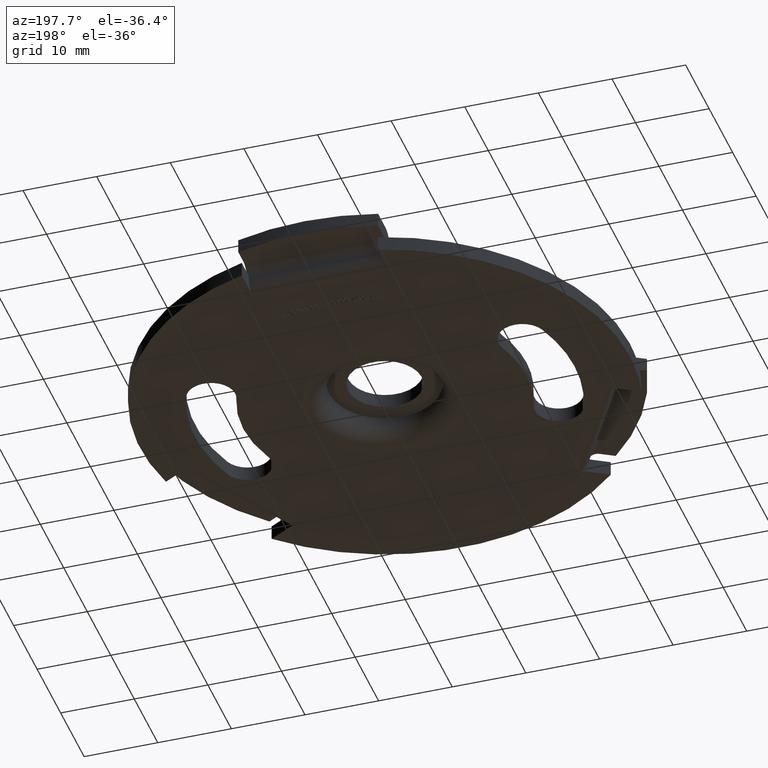
[diagram: clean part render]
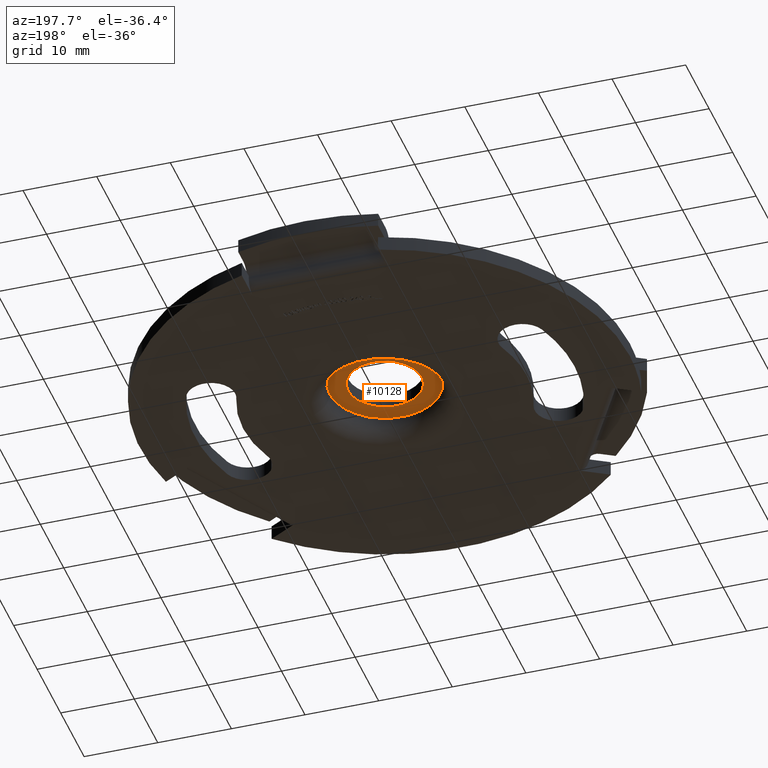
[diagram: same view with one face highlighted and labeled with its STEP entity id]
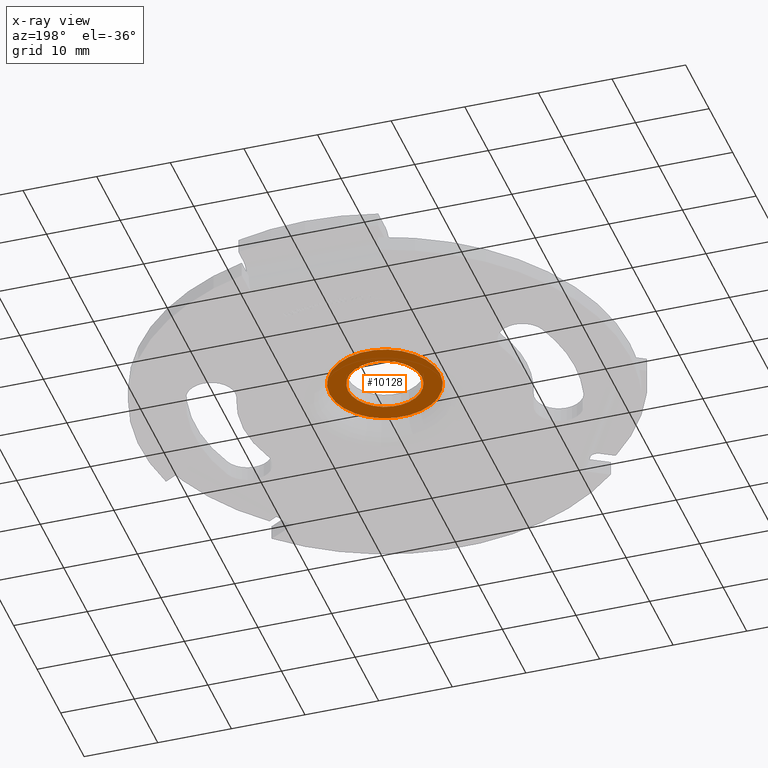
[diagram: x-ray of the same camera — body ghosted, the highlighted face saturated]
A machine part, auxiliary view. The second image highlights one B-rep face of the part: STEP entity #10128.
The next image is the same camera in x-ray: the body ghosted, the highlighted face saturated — about 0% of this face is hidden behind the body in this view.
In plain terms, the highlighted planar face has unit normal (0, 0, 1).
Its self-contained STEP definition (entity closure, byte-faithful):
#582 = VERTEX_POINT ( 'NONE', #1670 ) ;
#641 = AXIS2_PLACEMENT_3D ( 'NONE', #14925, #4477, #13671 ) ;
#1670 = CARTESIAN_POINT ( 'NONE',  ( 5.000000000000000000, 0.000000000000000000, 2.900000000000000799 ) ) ;
#2127 = FACE_BOUND ( 'NONE', #6142, .T. ) ;
#2645 = EDGE_CURVE ( 'NONE', #15735, #4083, #8747, .T. ) ;
#2648 = CARTESIAN_POINT ( 'NONE',  ( 0.000000000000000000, 0.000000000000000000, 2.900000000000000799 ) ) ;
#3530 = ORIENTED_EDGE ( 'NONE', *, *, #4135, .T. ) ;
#3685 = EDGE_LOOP ( 'NONE', ( #3686, #3530 ) ) ;
#3686 = ORIENTED_EDGE ( 'NONE', *, *, #2645, .T. ) ;
#3717 = DIRECTION ( 'NONE',  ( 1.000000000000000000, 0.000000000000000000, 0.000000000000000000 ) ) ;
#4083 = VERTEX_POINT ( 'NONE', #5396 ) ;
#4135 = EDGE_CURVE ( 'NONE', #4083, #15735, #12518, .T. ) ;
#4477 = DIRECTION ( 'NONE',  ( -0.000000000000000000, -0.000000000000000000, -1.000000000000000000 ) ) ;
#4487 = DIRECTION ( 'NONE',  ( 1.000000000000000000, 0.000000000000000000, 0.000000000000000000 ) ) ;
#5396 = CARTESIAN_POINT ( 'NONE',  ( -7.500000000000000000, 1.102080036968623438E-15, 2.899999999999999911 ) ) ;
#6142 = EDGE_LOOP ( 'NONE', ( #6272, #16495 ) ) ;
#6272 = ORIENTED_EDGE ( 'NONE', *, *, #8443, .T. ) ;
#6295 = CARTESIAN_POINT ( 'NONE',  ( 7.500000000000000000, 0.000000000000000000, 2.899999999999999911 ) ) ;
#6623 = CIRCLE ( 'NONE', #7135, 5.000000000000000000 ) ;
#6645 = DIRECTION ( 'NONE',  ( 0.000000000000000000, 0.000000000000000000, 1.000000000000000000 ) ) ;
#7135 = AXIS2_PLACEMENT_3D ( 'NONE', #12810, #10323, #3717 ) ;
#8024 = PLANE ( 'NONE',  #8419 ) ;
#8133 = DIRECTION ( 'NONE',  ( 1.000000000000000000, 0.000000000000000000, -0.000000000000000000 ) ) ;
#8189 = VERTEX_POINT ( 'NONE', #12363 ) ;
#8419 = AXIS2_PLACEMENT_3D ( 'NONE', #16000, #12055, #8133 ) ;
#8443 = EDGE_CURVE ( 'NONE', #582, #8189, #6623, .T. ) ;
#8747 = CIRCLE ( 'NONE', #10782, 7.500000000000000000 ) ;
#9943 = DIRECTION ( 'NONE',  ( -0.000000000000000000, -0.000000000000000000, -1.000000000000000000 ) ) ;
#10128 = ADVANCED_FACE ( 'NONE', ( #2127, #12186 ), #8024, .F. ) ;
#10323 = DIRECTION ( 'NONE',  ( 0.000000000000000000, 0.000000000000000000, 1.000000000000000000 ) ) ;
#10782 = AXIS2_PLACEMENT_3D ( 'NONE', #13733, #9943, #4487 ) ;
#12055 = DIRECTION ( 'NONE',  ( 0.000000000000000000, 0.000000000000000000, 1.000000000000000000 ) ) ;
#12186 = FACE_OUTER_BOUND ( 'NONE', #3685, .T. ) ;
#12363 = CARTESIAN_POINT ( 'NONE',  ( -5.000000000000000000, 6.123233995736766282E-16, 2.900000000000000799 ) ) ;
#12518 = CIRCLE ( 'NONE', #641, 7.500000000000000000 ) ;
#12794 = AXIS2_PLACEMENT_3D ( 'NONE', #2648, #6645, #15901 ) ;
#12810 = CARTESIAN_POINT ( 'NONE',  ( 0.000000000000000000, 0.000000000000000000, 2.900000000000000799 ) ) ;
#13671 = DIRECTION ( 'NONE',  ( 1.000000000000000000, 0.000000000000000000, 0.000000000000000000 ) ) ;
#13733 = CARTESIAN_POINT ( 'NONE',  ( 0.000000000000000000, 0.000000000000000000, 2.899999999999999911 ) ) ;
#14925 = CARTESIAN_POINT ( 'NONE',  ( 0.000000000000000000, 0.000000000000000000, 2.899999999999999911 ) ) ;
#15056 = CIRCLE ( 'NONE', #12794, 5.000000000000000000 ) ;
#15407 = EDGE_CURVE ( 'NONE', #8189, #582, #15056, .T. ) ;
#15735 = VERTEX_POINT ( 'NONE', #6295 ) ;
#15901 = DIRECTION ( 'NONE',  ( 1.000000000000000000, 0.000000000000000000, 0.000000000000000000 ) ) ;
#16000 = CARTESIAN_POINT ( 'NONE',  ( 0.000000000000000000, 0.000000000000000000, 2.900000000000000799 ) ) ;
#16495 = ORIENTED_EDGE ( 'NONE', *, *, #15407, .T. ) ;